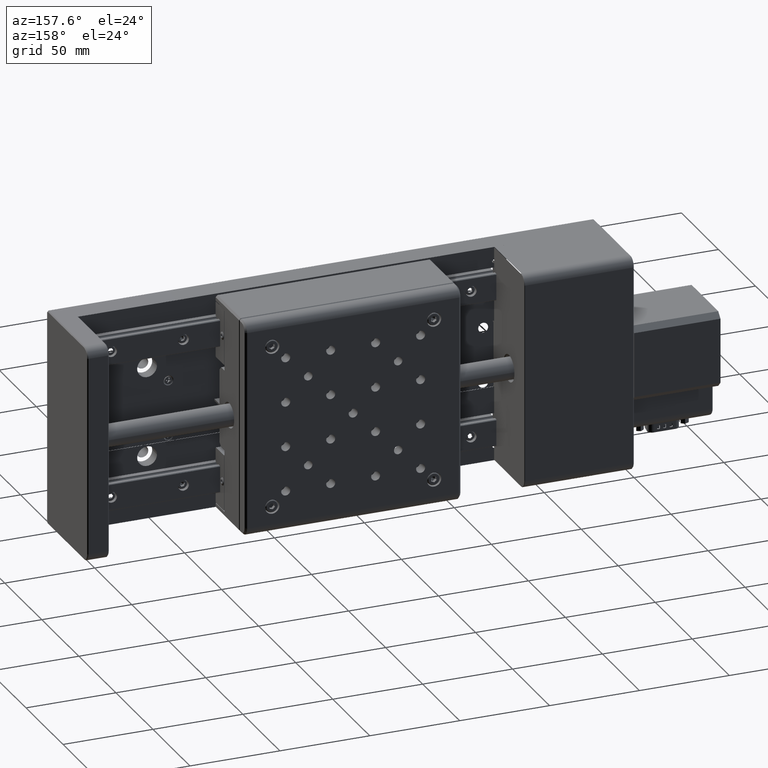
[diagram: clean part render]
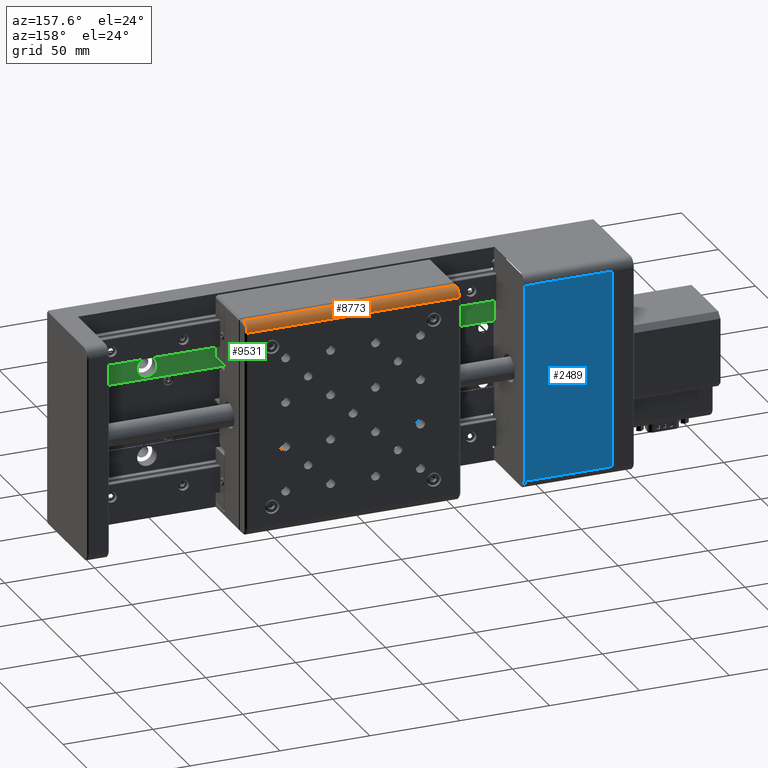
[diagram: same view with three faces highlighted in distinct colors, each labeled with its STEP entity id]
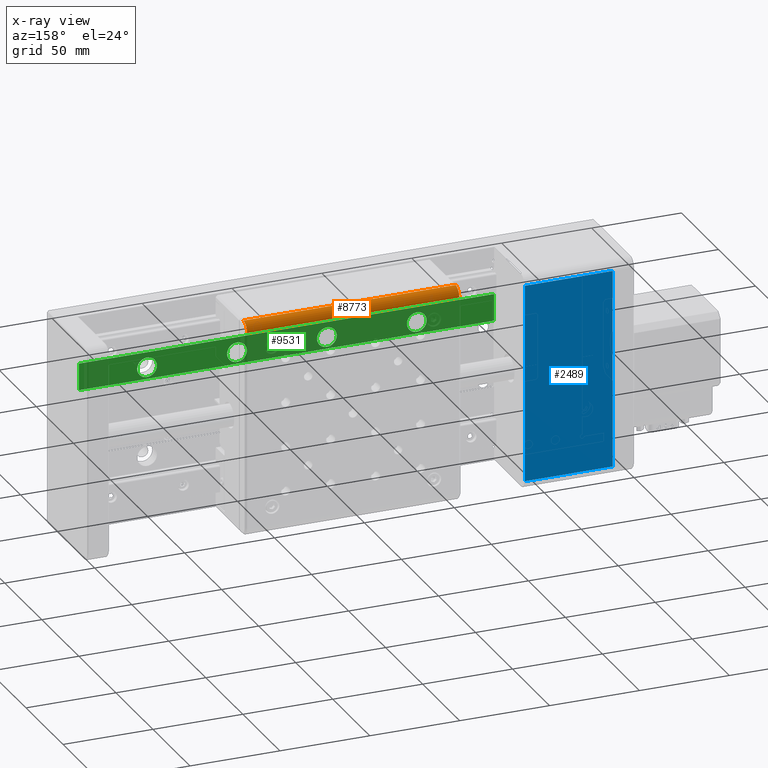
[diagram: x-ray of the same camera — body ghosted, the three highlighted faces saturated]
A machine part, auxiliary view with three faces highlighted in distinct colors.
The next image is the same camera in x-ray (body ghosted, the three faces saturated) — at least one of them is partly hidden behind the body in this view.
Their STEP definitions:

[orange] entity #8773 — the highlighted cylindrical surface (edge-blend (fillet) strip) has radius 5 mm, axis along (1, 0, -0).
#365 = FACE_OUTER_BOUND ( 'NONE', #36871, .T. ) ;
#4129 = EDGE_CURVE ( 'NONE', #31660, #18977, #25814, .T. ) ;
#4976 = AXIS2_PLACEMENT_3D ( 'NONE', #19186, #37241, #22205 ) ;
#5131 = CARTESIAN_POINT ( 'NONE',  ( 468.6596945975858800, 50.99999999999839400, 486.9433306992480700 ) ) ;
#5626 = DIRECTION ( 'NONE',  ( -1.000000000000000000, -1.496908828207086500E-025, 3.201528549886529400E-016 ) ) ;
#6050 = DIRECTION ( 'NONE',  ( -1.000000000000000000, -1.496908828207086500E-025, 3.201528549886529400E-016 ) ) ;
#6484 = VECTOR ( 'NONE', #13193, 1000.000000000000000 ) ;
#7214 = CARTESIAN_POINT ( 'NONE',  ( 408.6596945975858300, 55.99999999999839400, 481.9433306992480700 ) ) ;
#7395 = LINE ( 'NONE', #7214, #6484 ) ;
#8538 = VECTOR ( 'NONE', #5626, 1000.000000000000000 ) ;
#8773 = ADVANCED_FACE ( 'NONE', ( #365 ), #31147, .T. ) ;
#11099 = ORIENTED_EDGE ( 'NONE', *, *, #24790, .T. ) ;
#12711 = EDGE_CURVE ( 'NONE', #35375, #25752, #7395, .T. ) ;
#13193 = DIRECTION ( 'NONE',  ( 1.000000000000000000, 1.496908828207086500E-025, -3.201528549886529400E-016 ) ) ;
#14607 = CIRCLE ( 'NONE', #34646, 4.999999999999997300 ) ;
#16293 = DIRECTION ( 'NONE',  ( 1.000000000000000000, 1.496908828207086500E-025, -3.201528549886529400E-016 ) ) ;
#18789 = CARTESIAN_POINT ( 'NONE',  ( 349.6596945975858300, 50.99999999999839400, 486.9433306992481200 ) ) ;
#18977 = VERTEX_POINT ( 'NONE', #18789 ) ;
#19153 = CARTESIAN_POINT ( 'NONE',  ( 349.6596945975858300, 50.99999999999839400, 481.9433306992481200 ) ) ;
#19186 = CARTESIAN_POINT ( 'NONE',  ( 408.6596945975858300, 50.99999999999839400, 481.9433306992480700 ) ) ;
#20897 = ORIENTED_EDGE ( 'NONE', *, *, #25712, .T. ) ;
#22205 = DIRECTION ( 'NONE',  ( 0.0000000000000000000, -1.000000000000000000, 0.0000000000000000000 ) ) ;
#24790 = EDGE_CURVE ( 'NONE', #35375, #18977, #14607, .T. ) ;
#25712 = EDGE_CURVE ( 'NONE', #31660, #25752, #35651, .T. ) ;
#25752 = VERTEX_POINT ( 'NONE', #32774 ) ;
#25814 = LINE ( 'NONE', #5131, #8538 ) ;
#26472 = DIRECTION ( 'NONE',  ( 0.0000000000000000000, 1.000000000000000000, 0.0000000000000000000 ) ) ;
#27910 = DIRECTION ( 'NONE',  ( 0.0000000000000000000, -1.000000000000000000, 0.0000000000000000000 ) ) ;
#28266 = ORIENTED_EDGE ( 'NONE', *, *, #4129, .F. ) ;
#31147 = CYLINDRICAL_SURFACE ( 'NONE', #4976, 4.999999999999997300 ) ;
#31660 = VERTEX_POINT ( 'NONE', #35055 ) ;
#32530 = CARTESIAN_POINT ( 'NONE',  ( 467.6596945975858800, 50.99999999999839400, 481.9433306992480700 ) ) ;
#32774 = CARTESIAN_POINT ( 'NONE',  ( 467.6596945975858800, 55.99999999999839400, 481.9433306992480700 ) ) ;
#32826 = ORIENTED_EDGE ( 'NONE', *, *, #12711, .F. ) ;
#33892 = AXIS2_PLACEMENT_3D ( 'NONE', #32530, #6050, #26472 ) ;
#34646 = AXIS2_PLACEMENT_3D ( 'NONE', #19153, #16293, #27910 ) ;
#35055 = CARTESIAN_POINT ( 'NONE',  ( 467.6596945975858800, 50.99999999999839400, 486.9433306992480700 ) ) ;
#35375 = VERTEX_POINT ( 'NONE', #35940 ) ;
#35651 = CIRCLE ( 'NONE', #33892, 4.999999999999997300 ) ;
#35940 = CARTESIAN_POINT ( 'NONE',  ( 349.6596945975858300, 55.99999999999839400, 481.9433306992481200 ) ) ;
#36871 = EDGE_LOOP ( 'NONE', ( #28266, #20897, #32826, #11099 ) ) ;
#37241 = DIRECTION ( 'NONE',  ( 1.000000000000000000, 1.496908828207086500E-025, -3.201528549886529400E-016 ) ) ;

[blue] entity #2489 — the highlighted planar face has unit normal (0, -1, 0).
#250 = DIRECTION ( 'NONE',  ( 1.000000000000000000, 0.0000000000000000000, 0.0000000000000000000 ) ) ;
#1719 = EDGE_LOOP ( 'NONE', ( #28166, #23272, #9177, #24725 ) ) ;
#1835 = CARTESIAN_POINT ( 'NONE',  ( 263.9875862552708600, 54.99999999999999300, 371.9433306992482400 ) ) ;
#2489 = ADVANCED_FACE ( 'NONE', ( #27728 ), #20694, .F. ) ;
#2705 = VERTEX_POINT ( 'NONE', #9606 ) ;
#4953 = VECTOR ( 'NONE', #250, 1000.000000000000000 ) ;
#6219 = VECTOR ( 'NONE', #28009, 1000.000000000000000 ) ;
#8324 = VERTEX_POINT ( 'NONE', #35208 ) ;
#8328 = AXIS2_PLACEMENT_3D ( 'NONE', #17288, #17412, #29716 ) ;
#8472 = CARTESIAN_POINT ( 'NONE',  ( 263.9875862552708600, 54.99999999999999300, 366.9433306992482400 ) ) ;
#9177 = ORIENTED_EDGE ( 'NONE', *, *, #17298, .T. ) ;
#9191 = LINE ( 'NONE', #15110, #24109 ) ;
#9230 = EDGE_CURVE ( 'NONE', #2705, #10986, #13849, .T. ) ;
#9606 = CARTESIAN_POINT ( 'NONE',  ( 263.9875862552708600, 55.00000000000000700, 481.9433306992482400 ) ) ;
#10141 = EDGE_CURVE ( 'NONE', #2705, #15534, #12885, .T. ) ;
#10986 = VERTEX_POINT ( 'NONE', #14046 ) ;
#12885 = LINE ( 'NONE', #29847, #4953 ) ;
#13849 = LINE ( 'NONE', #8472, #14774 ) ;
#14046 = CARTESIAN_POINT ( 'NONE',  ( 263.9875862552708600, 54.99999999999999300, 371.9433306992482400 ) ) ;
#14774 = VECTOR ( 'NONE', #26202, 1000.000000000000000 ) ;
#15110 = CARTESIAN_POINT ( 'NONE',  ( 312.7875862552708700, 54.99999999999999300, 371.9433306992482400 ) ) ;
#15534 = VERTEX_POINT ( 'NONE', #18026 ) ;
#17288 = CARTESIAN_POINT ( 'NONE',  ( 263.9875862552708600, 54.99999999999999300, 366.9433306992482400 ) ) ;
#17298 = EDGE_CURVE ( 'NONE', #8324, #10986, #28138, .T. ) ;
#17412 = DIRECTION ( 'NONE',  ( 0.0000000000000000000, -1.000000000000000000, 1.502202555303642100E-016 ) ) ;
#18026 = CARTESIAN_POINT ( 'NONE',  ( 312.7875862552708700, 55.00000000000000700, 481.9433306992482400 ) ) ;
#20694 = PLANE ( 'NONE',  #8328 ) ;
#23272 = ORIENTED_EDGE ( 'NONE', *, *, #27994, .T. ) ;
#24109 = VECTOR ( 'NONE', #33267, 1000.000000000000000 ) ;
#24725 = ORIENTED_EDGE ( 'NONE', *, *, #9230, .F. ) ;
#26202 = DIRECTION ( 'NONE',  ( 0.0000000000000000000, -1.502202555303642100E-016, -1.000000000000000000 ) ) ;
#27728 = FACE_OUTER_BOUND ( 'NONE', #1719, .T. ) ;
#27994 = EDGE_CURVE ( 'NONE', #15534, #8324, #9191, .T. ) ;
#28009 = DIRECTION ( 'NONE',  ( -1.000000000000000000, -0.0000000000000000000, -0.0000000000000000000 ) ) ;
#28138 = LINE ( 'NONE', #1835, #6219 ) ;
#28166 = ORIENTED_EDGE ( 'NONE', *, *, #10141, .T. ) ;
#29716 = DIRECTION ( 'NONE',  ( 1.000000000000000000, 0.0000000000000000000, 0.0000000000000000000 ) ) ;
#29847 = CARTESIAN_POINT ( 'NONE',  ( 263.9875862552708600, 55.00000000000000700, 481.9433306992482400 ) ) ;
#33267 = DIRECTION ( 'NONE',  ( 0.0000000000000000000, -1.502202555303642100E-016, -1.000000000000000000 ) ) ;
#35208 = CARTESIAN_POINT ( 'NONE',  ( 312.7875862552708700, 54.99999999999999300, 371.9433306992482400 ) ) ;

[green] entity #9531 — the highlighted planar face has unit normal (0, 1, -0).
#666 = EDGE_LOOP ( 'NONE', ( #12815, #13967 ) ) ;
#697 = CIRCLE ( 'NONE', #21989, 5.500000000000005300 ) ;
#877 = ORIENTED_EDGE ( 'NONE', *, *, #31459, .F. ) ;
#1537 = DIRECTION ( 'NONE',  ( -1.000000000000000000, 0.0000000000000000000, 0.0000000000000000000 ) ) ;
#1685 = VERTEX_POINT ( 'NONE', #31003 ) ;
#1813 = CARTESIAN_POINT ( 'NONE',  ( 355.9875862552707400, 14.00000000000000700, 451.9433306992481200 ) ) ;
#1876 = CARTESIAN_POINT ( 'NONE',  ( 543.9875862552708000, 14.00000000000000500, 445.4433306992481200 ) ) ;
#2059 = DIRECTION ( 'NONE',  ( -0.0000000000000000000, 1.000000000000000000, -1.224646799147353200E-016 ) ) ;
#2425 = DIRECTION ( 'NONE',  ( -1.000000000000000000, 0.0000000000000000000, 0.0000000000000000000 ) ) ;
#4037 = ORIENTED_EDGE ( 'NONE', *, *, #9144, .F. ) ;
#4136 = CARTESIAN_POINT ( 'NONE',  ( 455.9875862552707400, 14.00000000000000700, 451.9433306992481200 ) ) ;
#4219 = CARTESIAN_POINT ( 'NONE',  ( 555.9875862552708000, 14.00000000000001100, 486.9433306992481200 ) ) ;
#4225 = DIRECTION ( 'NONE',  ( -1.000000000000000000, 1.381738895779361100E-032, 1.128275431529630700E-016 ) ) ;
#4331 = CARTESIAN_POINT ( 'NONE',  ( 312.9875862552707400, 14.00000000000000500, 445.4433306992480700 ) ) ;
#4345 = DIRECTION ( 'NONE',  ( 0.0000000000000000000, 1.000000000000000000, -1.224646799147353200E-016 ) ) ;
#4950 = VERTEX_POINT ( 'NONE', #20338 ) ;
#5378 = VERTEX_POINT ( 'NONE', #25213 ) ;
#6034 = ORIENTED_EDGE ( 'NONE', *, *, #32747, .F. ) ;
#6345 = EDGE_LOOP ( 'NONE', ( #877, #12561, #14627, #4037 ) ) ;
#6600 = ORIENTED_EDGE ( 'NONE', *, *, #12018, .F. ) ;
#6709 = VERTEX_POINT ( 'NONE', #25794 ) ;
#6825 = VERTEX_POINT ( 'NONE', #14041 ) ;
#7206 = DIRECTION ( 'NONE',  ( -1.000000000000000000, 0.0000000000000000000, 0.0000000000000000000 ) ) ;
#7251 = CARTESIAN_POINT ( 'NONE',  ( 312.9875862552707400, 14.00000000000000700, 460.4433306992480700 ) ) ;
#7734 = DIRECTION ( 'NONE',  ( 1.000000000000000000, 0.0000000000000000000, 0.0000000000000000000 ) ) ;
#7990 = CARTESIAN_POINT ( 'NONE',  ( 505.9875862552707400, 14.00000000000000700, 451.9433306992481200 ) ) ;
#9144 = EDGE_CURVE ( 'NONE', #24810, #13982, #33011, .T. ) ;
#9297 = EDGE_LOOP ( 'NONE', ( #6034, #11909 ) ) ;
#9382 = DIRECTION ( 'NONE',  ( 0.0000000000000000000, 1.224646799147353200E-016, 1.000000000000000000 ) ) ;
#9531 = ADVANCED_FACE ( 'NONE', ( #18491, #28744, #11926, #10562, #20797 ), #22308, .T. ) ;
#10168 = DIRECTION ( 'NONE',  ( -0.0000000000000000000, 1.000000000000000000, -1.224646799147353200E-016 ) ) ;
#10562 = FACE_BOUND ( 'NONE', #9297, .T. ) ;
#10571 = LINE ( 'NONE', #16570, #26405 ) ;
#11278 = EDGE_CURVE ( 'NONE', #14265, #6825, #697, .T. ) ;
#11731 = DIRECTION ( 'NONE',  ( -1.000000000000000000, 0.0000000000000000000, 0.0000000000000000000 ) ) ;
#11802 = DIRECTION ( 'NONE',  ( -1.000000000000000000, 0.0000000000000000000, 0.0000000000000000000 ) ) ;
#11909 = ORIENTED_EDGE ( 'NONE', *, *, #25867, .F. ) ;
#11926 = FACE_BOUND ( 'NONE', #33210, .T. ) ;
#12018 = EDGE_CURVE ( 'NONE', #6709, #1685, #26919, .T. ) ;
#12561 = ORIENTED_EDGE ( 'NONE', *, *, #36961, .F. ) ;
#12815 = ORIENTED_EDGE ( 'NONE', *, *, #12894, .F. ) ;
#12894 = EDGE_CURVE ( 'NONE', #35994, #4950, #19003, .T. ) ;
#12919 = VECTOR ( 'NONE', #7734, 1000.000000000000000 ) ;
#13404 = EDGE_CURVE ( 'NONE', #1685, #6709, #34883, .T. ) ;
#13967 = ORIENTED_EDGE ( 'NONE', *, *, #27739, .F. ) ;
#13982 = VERTEX_POINT ( 'NONE', #33667 ) ;
#14002 = CARTESIAN_POINT ( 'NONE',  ( 405.9875862552707400, 14.00000000000000700, 451.9433306992481200 ) ) ;
#14041 = CARTESIAN_POINT ( 'NONE',  ( 361.4875862552707400, 14.00000000000000700, 451.9433306992481200 ) ) ;
#14263 = EDGE_CURVE ( 'NONE', #6825, #14265, #31523, .T. ) ;
#14265 = VERTEX_POINT ( 'NONE', #28923 ) ;
#14510 = AXIS2_PLACEMENT_3D ( 'NONE', #7990, #28853, #31862 ) ;
#14627 = ORIENTED_EDGE ( 'NONE', *, *, #34348, .F. ) ;
#14753 = VERTEX_POINT ( 'NONE', #31185 ) ;
#15125 = AXIS2_PLACEMENT_3D ( 'NONE', #30780, #10168, #37049 ) ;
#16570 = CARTESIAN_POINT ( 'NONE',  ( 297.9875862552707400, 14.00000000000000700, 460.4433306992481200 ) ) ;
#16687 = AXIS2_PLACEMENT_3D ( 'NONE', #4219, #4345, #7206 ) ;
#17028 = LINE ( 'NONE', #32552, #30126 ) ;
#17286 = CARTESIAN_POINT ( 'NONE',  ( 355.9875862552707400, 14.00000000000000700, 451.9433306992481200 ) ) ;
#18491 = FACE_OUTER_BOUND ( 'NONE', #6345, .T. ) ;
#18851 = ORIENTED_EDGE ( 'NONE', *, *, #13404, .F. ) ;
#19003 = CIRCLE ( 'NONE', #14510, 5.500000000000060400 ) ;
#19821 = DIRECTION ( 'NONE',  ( -0.0000000000000000000, 1.000000000000000000, -1.224646799147353200E-016 ) ) ;
#20004 = AXIS2_PLACEMENT_3D ( 'NONE', #26214, #29230, #11731 ) ;
#20076 = DIRECTION ( 'NONE',  ( -1.000000000000000000, 0.0000000000000000000, 0.0000000000000000000 ) ) ;
#20338 = CARTESIAN_POINT ( 'NONE',  ( 511.4875862552706800, 14.00000000000000700, 451.9433306992481200 ) ) ;
#20689 = DIRECTION ( 'NONE',  ( -0.0000000000000000000, 1.000000000000000000, -1.224646799147353200E-016 ) ) ;
#20797 = FACE_BOUND ( 'NONE', #23098, .T. ) ;
#21585 = DIRECTION ( 'NONE',  ( -0.0000000000000000000, 1.000000000000000000, -1.224646799147353200E-016 ) ) ;
#21989 = AXIS2_PLACEMENT_3D ( 'NONE', #1813, #2059, #1537 ) ;
#22308 = PLANE ( 'NONE',  #16687 ) ;
#22655 = AXIS2_PLACEMENT_3D ( 'NONE', #28840, #19821, #20076 ) ;
#22971 = VECTOR ( 'NONE', #9382, 1000.000000000000000 ) ;
#23098 = EDGE_LOOP ( 'NONE', ( #34450, #37004 ) ) ;
#24228 = CARTESIAN_POINT ( 'NONE',  ( 500.4875862552706800, 14.00000000000000700, 451.9433306992481200 ) ) ;
#24253 = CIRCLE ( 'NONE', #15125, 5.500000000000005300 ) ;
#24593 = CIRCLE ( 'NONE', #22655, 5.500000000000060400 ) ;
#24810 = VERTEX_POINT ( 'NONE', #4331 ) ;
#25213 = CARTESIAN_POINT ( 'NONE',  ( 411.4875862552707400, 14.00000000000000700, 451.9433306992481200 ) ) ;
#25794 = CARTESIAN_POINT ( 'NONE',  ( 461.4875862552707400, 14.00000000000000700, 451.9433306992481200 ) ) ;
#25867 = EDGE_CURVE ( 'NONE', #5378, #38451, #24253, .T. ) ;
#26214 = CARTESIAN_POINT ( 'NONE',  ( 455.9875862552707400, 14.00000000000000700, 451.9433306992481200 ) ) ;
#26405 = VECTOR ( 'NONE', #4225, 1000.000000000000000 ) ;
#26919 = CIRCLE ( 'NONE', #20004, 5.500000000000005300 ) ;
#27739 = EDGE_CURVE ( 'NONE', #4950, #35994, #24593, .T. ) ;
#27818 = CIRCLE ( 'NONE', #31535, 5.500000000000005300 ) ;
#28744 = FACE_BOUND ( 'NONE', #666, .T. ) ;
#28840 = CARTESIAN_POINT ( 'NONE',  ( 505.9875862552707400, 14.00000000000000700, 451.9433306992481200 ) ) ;
#28853 = DIRECTION ( 'NONE',  ( -0.0000000000000000000, 1.000000000000000000, -1.224646799147353200E-016 ) ) ;
#28923 = CARTESIAN_POINT ( 'NONE',  ( 350.4875862552706800, 14.00000000000000700, 451.9433306992481200 ) ) ;
#29230 = DIRECTION ( 'NONE',  ( -0.0000000000000000000, 1.000000000000000000, -1.224646799147353200E-016 ) ) ;
#30000 = CARTESIAN_POINT ( 'NONE',  ( 543.9875862552708000, 13.99999999999999600, 371.9433306992481200 ) ) ;
#30126 = VECTOR ( 'NONE', #38526, 1000.000000000000000 ) ;
#30780 = CARTESIAN_POINT ( 'NONE',  ( 405.9875862552707400, 14.00000000000000700, 451.9433306992481200 ) ) ;
#30913 = LINE ( 'NONE', #30000, #22971 ) ;
#31003 = CARTESIAN_POINT ( 'NONE',  ( 450.4875862552707400, 14.00000000000000700, 451.9433306992481200 ) ) ;
#31130 = VERTEX_POINT ( 'NONE', #7251 ) ;
#31185 = CARTESIAN_POINT ( 'NONE',  ( 543.9875862552708000, 14.00000000000000700, 460.4433306992480700 ) ) ;
#31459 = EDGE_CURVE ( 'NONE', #31130, #24810, #17028, .T. ) ;
#31523 = CIRCLE ( 'NONE', #37856, 5.500000000000005300 ) ;
#31535 = AXIS2_PLACEMENT_3D ( 'NONE', #14002, #35160, #2425 ) ;
#31577 = AXIS2_PLACEMENT_3D ( 'NONE', #4136, #21585, #33737 ) ;
#31614 = CARTESIAN_POINT ( 'NONE',  ( 400.4875862552707400, 14.00000000000000700, 451.9433306992481200 ) ) ;
#31862 = DIRECTION ( 'NONE',  ( -1.000000000000000000, 0.0000000000000000000, 0.0000000000000000000 ) ) ;
#32552 = CARTESIAN_POINT ( 'NONE',  ( 312.9875862552707400, 13.99999999999999600, 374.9433306992480700 ) ) ;
#32747 = EDGE_CURVE ( 'NONE', #38451, #5378, #27818, .T. ) ;
#33011 = LINE ( 'NONE', #1876, #12919 ) ;
#33210 = EDGE_LOOP ( 'NONE', ( #18851, #6600 ) ) ;
#33667 = CARTESIAN_POINT ( 'NONE',  ( 543.9875862552708000, 14.00000000000000500, 445.4433306992481200 ) ) ;
#33737 = DIRECTION ( 'NONE',  ( -1.000000000000000000, 0.0000000000000000000, 0.0000000000000000000 ) ) ;
#34348 = EDGE_CURVE ( 'NONE', #13982, #14753, #30913, .T. ) ;
#34450 = ORIENTED_EDGE ( 'NONE', *, *, #11278, .F. ) ;
#34883 = CIRCLE ( 'NONE', #31577, 5.500000000000005300 ) ;
#35160 = DIRECTION ( 'NONE',  ( -0.0000000000000000000, 1.000000000000000000, -1.224646799147353200E-016 ) ) ;
#35994 = VERTEX_POINT ( 'NONE', #24228 ) ;
#36961 = EDGE_CURVE ( 'NONE', #14753, #31130, #10571, .T. ) ;
#37004 = ORIENTED_EDGE ( 'NONE', *, *, #14263, .F. ) ;
#37049 = DIRECTION ( 'NONE',  ( -1.000000000000000000, 0.0000000000000000000, 0.0000000000000000000 ) ) ;
#37856 = AXIS2_PLACEMENT_3D ( 'NONE', #17286, #20689, #11802 ) ;
#38451 = VERTEX_POINT ( 'NONE', #31614 ) ;
#38526 = DIRECTION ( 'NONE',  ( -0.0000000000000000000, -1.224646799147353200E-016, -1.000000000000000000 ) ) ;